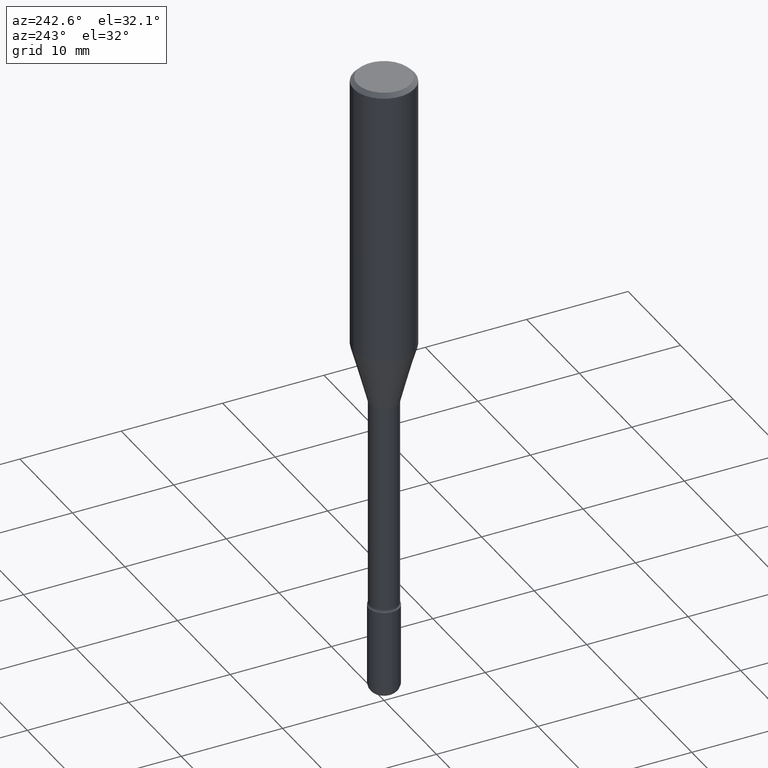
[diagram: clean part render]
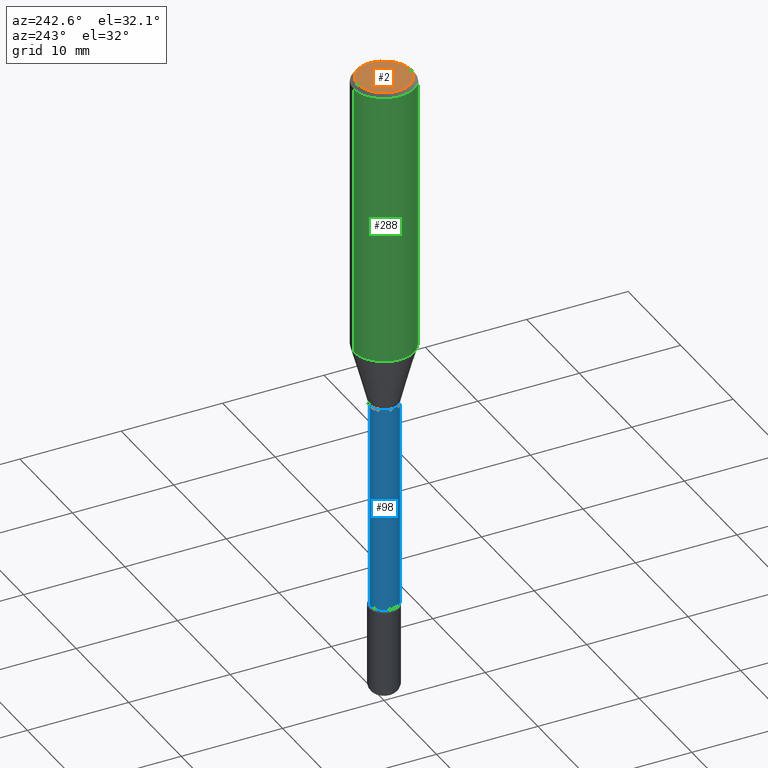
[diagram: same view with three faces highlighted in distinct colors, each labeled with its STEP entity id]
A machine part, auxiliary view with three faces highlighted in distinct colors.
Their STEP definitions:

[orange] entity #2 — the highlighted planar face has unit normal (0, -0, -1).
#2 = ADVANCED_FACE ( 'NONE', ( #182 ), #361, .F. ) ;
#48 = DIRECTION ( 'NONE',  ( 6.982962677686265922E-15, 1.000000000000000000, -3.491702207079214016E-15 ) ) ;
#52 = EDGE_LOOP ( 'NONE', ( #383, #298 ) ) ;
#131 = CARTESIAN_POINT ( 'NONE',  ( -7.587710785535310407E-16, -0.1031000000000000111, 3.312380692850428747E-16 ) ) ;
#138 = AXIS2_PLACEMENT_3D ( 'NONE', #267, #307, #48 ) ;
#144 = EDGE_CURVE ( 'NONE', #147, #455, #268, .T. ) ;
#147 = VERTEX_POINT ( 'NONE', #131 ) ;
#182 = FACE_OUTER_BOUND ( 'NONE', #52, .T. ) ;
#231 = CARTESIAN_POINT ( 'NONE',  ( 7.024477919222300476E-46, -1.005144752683258765E-31, -2.875642826482414108E-17 ) ) ;
#267 = CARTESIAN_POINT ( 'NONE',  ( 7.199434520694541042E-16, 0.1031000000000000111, -1.353360122366559931E-16 ) ) ;
#268 = CIRCLE ( 'NONE', #334, 0.1031000000000000111 ) ;
#272 = DIRECTION ( 'NONE',  ( -2.445314574720221452E-29, 3.491702207079214016E-15, 1.000000000000000000 ) ) ;
#298 = ORIENTED_EDGE ( 'NONE', *, *, #144, .T. ) ;
#307 = DIRECTION ( 'NONE',  ( 2.445314574720221172E-29, -3.491702207079214016E-15, -1.000000000000000000 ) ) ;
#308 = DIRECTION ( 'NONE',  ( -6.982962677686265922E-15, -1.000000000000000000, 3.491702207079214016E-15 ) ) ;
#334 = AXIS2_PLACEMENT_3D ( 'NONE', #231, #272, #409 ) ;
#361 = PLANE ( 'NONE',  #138 ) ;
#383 = ORIENTED_EDGE ( 'NONE', *, *, #517, .T. ) ;
#384 = CARTESIAN_POINT ( 'NONE',  ( 7.723156721521011834E-16, 0.1031000000000000111, -3.887509258146911569E-16 ) ) ;
#387 = AXIS2_PLACEMENT_3D ( 'NONE', #399, #483, #308 ) ;
#399 = CARTESIAN_POINT ( 'NONE',  ( 7.024477919222300476E-46, -1.005144752683258765E-31, -2.875642826482414108E-17 ) ) ;
#409 = DIRECTION ( 'NONE',  ( -6.982962677686265922E-15, -1.000000000000000000, 3.491702207079214016E-15 ) ) ;
#455 = VERTEX_POINT ( 'NONE', #384 ) ;
#483 = DIRECTION ( 'NONE',  ( -2.445314574720221452E-29, 3.491702207079214016E-15, 1.000000000000000000 ) ) ;
#517 = EDGE_CURVE ( 'NONE', #455, #147, #563, .T. ) ;
#563 = CIRCLE ( 'NONE', #387, 0.1031000000000000111 ) ;

[blue] entity #98 — the highlighted cylindrical surface (edge-blend (fillet) strip) has radius 1.4097 mm, axis along (-0, 0, 1).
#6 = AXIS2_PLACEMENT_3D ( 'NONE', #480, #436, #559 ) ;
#40 = CARTESIAN_POINT ( 'NONE',  ( -1.169113584055446105E-44, 1.669184350826100908E-30, 4.780733988912460139E-16 ) ) ;
#43 = EDGE_CURVE ( 'NONE', #471, #164, #446, .T. ) ;
#46 = EDGE_CURVE ( 'NONE', #190, #531, #488, .T. ) ;
#53 = VECTOR ( 'NONE', #481, 39.37007874015748143 ) ;
#74 = AXIS2_PLACEMENT_3D ( 'NONE', #303, #165, #512 ) ;
#77 = CARTESIAN_POINT ( 'NONE',  ( 4.069633519066500838E-16, 0.05549999999999261774, -2.136009927760847749 ) ) ;
#98 = ADVANCED_FACE ( 'NONE', ( #439 ), #572, .T. ) ;
#105 = CARTESIAN_POINT ( 'NONE',  ( -3.875544286115360749E-16, -0.05550000000000754330, -2.136009927760847305 ) ) ;
#117 = ORIENTED_EDGE ( 'NONE', *, *, #458, .T. ) ;
#119 = ORIENTED_EDGE ( 'NONE', *, *, #43, .F. ) ;
#128 = VECTOR ( 'NONE', #398, 39.37007874015748143 ) ;
#164 = VERTEX_POINT ( 'NONE', #285 ) ;
#165 = DIRECTION ( 'NONE',  ( -2.445314574720221452E-29, 3.491702207079214016E-15, 1.000000000000000000 ) ) ;
#190 = VERTEX_POINT ( 'NONE', #105 ) ;
#220 = DIRECTION ( 'NONE',  ( -6.982962677686265922E-15, -1.000000000000000000, 3.491702207079214016E-15 ) ) ;
#224 = DIRECTION ( 'NONE',  ( -2.445314574720221452E-29, 3.491702207079214016E-15, 1.000000000000000000 ) ) ;
#253 = ORIENTED_EDGE ( 'NONE', *, *, #46, .T. ) ;
#274 = EDGE_LOOP ( 'NONE', ( #119, #117, #253, #428 ) ) ;
#285 = CARTESIAN_POINT ( 'NONE',  ( 3.943512183469081661E-16, 0.05549999999999540023, -1.320874787463811373 ) ) ;
#289 = CIRCLE ( 'NONE', #6, 0.05550000000000008399 ) ;
#303 = CARTESIAN_POINT ( 'NONE',  ( 3.229954369165731744E-29, -4.612101410662676179E-15, -1.320874787463810929 ) ) ;
#318 = CARTESIAN_POINT ( 'NONE',  ( 3.943512183468558548E-16, 0.05550000000000004929, 2.842839263983495232E-16 ) ) ;
#320 = CARTESIAN_POINT ( 'NONE',  ( -3.875544286115880904E-16, -0.05550000000000004929, 6.718628713841425539E-16 ) ) ;
#324 = CIRCLE ( 'NONE', #74, 0.05550000000000001460 ) ;
#381 = EDGE_CURVE ( 'NONE', #164, #531, #324, .T. ) ;
#398 = DIRECTION ( 'NONE',  ( -2.445314574720221172E-29, 3.491702207079214016E-15, 1.000000000000000000 ) ) ;
#428 = ORIENTED_EDGE ( 'NONE', *, *, #381, .F. ) ;
#436 = DIRECTION ( 'NONE',  ( -2.445314574720221452E-29, 3.491702207079214016E-15, 1.000000000000000000 ) ) ;
#439 = FACE_OUTER_BOUND ( 'NONE', #274, .T. ) ;
#445 = CARTESIAN_POINT ( 'NONE',  ( -3.875544286115555499E-16, -0.05550000000000462202, -1.320874787463810707 ) ) ;
#446 = LINE ( 'NONE', #318, #53 ) ;
#458 = EDGE_CURVE ( 'NONE', #471, #190, #289, .T. ) ;
#471 = VERTEX_POINT ( 'NONE', #77 ) ;
#480 = CARTESIAN_POINT ( 'NONE',  ( 5.223216208100687058E-29, -7.458310579105662270E-15, -2.136009927760847305 ) ) ;
#481 = DIRECTION ( 'NONE',  ( -2.445314574720221172E-29, 3.491702207079214016E-15, 1.000000000000000000 ) ) ;
#488 = LINE ( 'NONE', #320, #128 ) ;
#512 = DIRECTION ( 'NONE',  ( -6.982962677686265922E-15, -1.000000000000000000, 4.922248637232905613E-15 ) ) ;
#531 = VERTEX_POINT ( 'NONE', #445 ) ;
#559 = DIRECTION ( 'NONE',  ( -6.982962677686265922E-15, -1.000000000000000000, 4.922248637232899302E-15 ) ) ;
#562 = AXIS2_PLACEMENT_3D ( 'NONE', #40, #224, #220 ) ;
#572 = CYLINDRICAL_SURFACE ( 'NONE', #562, 0.05550000000000004929 ) ;

[green] entity #288 — the highlighted cylindrical surface (edge-blend (fillet) strip) has radius 2.9997 mm, axis along (-0, 0, 1).
#3 = ORIENTED_EDGE ( 'NONE', *, *, #255, .F. ) ;
#23 = DIRECTION ( 'NONE',  ( -6.982962677686265922E-15, -1.000000000000000000, 3.487819265831411744E-15 ) ) ;
#24 = VERTEX_POINT ( 'NONE', #45 ) ;
#45 = CARTESIAN_POINT ( 'NONE',  ( -8.246878922347212441E-16, -0.1181000000000037714, -1.085273619446188276 ) ) ;
#73 = DIRECTION ( 'NONE',  ( -2.445314574720221452E-29, 3.491702207079214016E-15, 1.000000000000000000 ) ) ;
#89 = CARTESIAN_POINT ( 'NONE',  ( 8.391509709326781971E-16, 0.1180999999999999966, 6.570336823519088696E-17 ) ) ;
#94 = DIRECTION ( 'NONE',  ( -2.445314574720221172E-29, 3.491702207079214016E-15, 1.000000000000000000 ) ) ;
#102 = CARTESIAN_POINT ( 'NONE',  ( -1.169113584055446105E-44, 1.669184350826100908E-30, 4.780733988912460139E-16 ) ) ;
#118 = LINE ( 'NONE', #217, #442 ) ;
#129 = AXIS2_PLACEMENT_3D ( 'NONE', #102, #368, #500 ) ;
#134 = EDGE_CURVE ( 'NONE', #511, #380, #486, .T. ) ;
#152 = CYLINDRICAL_SURFACE ( 'NONE', #129, 0.1180999999999999966 ) ;
#176 = CARTESIAN_POINT ( 'NONE',  ( 2.653835399191132044E-29, -3.789452292305104081E-15, -1.085273619446188720 ) ) ;
#188 = CARTESIAN_POINT ( 'NONE',  ( 8.391509709327049197E-16, 0.1180999999999962358, -1.085273619446189164 ) ) ;
#201 = FACE_OUTER_BOUND ( 'NONE', #548, .T. ) ;
#217 = CARTESIAN_POINT ( 'NONE',  ( -8.246878922347479668E-16, -0.1180999999999999966, 8.904434295473012272E-16 ) ) ;
#232 = ORIENTED_EDGE ( 'NONE', *, *, #497, .T. ) ;
#255 = EDGE_CURVE ( 'NONE', #380, #425, #259, .T. ) ;
#258 = DIRECTION ( 'NONE',  ( -2.445314574720221172E-29, 3.491702207079214016E-15, 1.000000000000000000 ) ) ;
#259 = CIRCLE ( 'NONE', #344, 0.1180999999999999966 ) ;
#288 = ADVANCED_FACE ( 'NONE', ( #201 ), #152, .T. ) ;
#306 = VECTOR ( 'NONE', #94, 39.37007874015748143 ) ;
#336 = CARTESIAN_POINT ( 'NONE',  ( 3.667971862080338817E-31, -5.237553310618831452E-17, -0.01500000000000002720 ) ) ;
#341 = CARTESIAN_POINT ( 'NONE',  ( 8.391509709327049197E-16, 0.1180999999999999411, -0.01500000000000044006 ) ) ;
#344 = AXIS2_PLACEMENT_3D ( 'NONE', #336, #461, #23 ) ;
#368 = DIRECTION ( 'NONE',  ( -2.445314574720221452E-29, 3.491702207079214016E-15, 1.000000000000000000 ) ) ;
#380 = VERTEX_POINT ( 'NONE', #341 ) ;
#382 = CARTESIAN_POINT ( 'NONE',  ( -8.246878922347475723E-16, -0.1181000000000000522, -0.01499999999999961607 ) ) ;
#406 = CIRCLE ( 'NONE', #504, 0.1180999999999999966 ) ;
#425 = VERTEX_POINT ( 'NONE', #382 ) ;
#440 = EDGE_CURVE ( 'NONE', #24, #425, #118, .T. ) ;
#442 = VECTOR ( 'NONE', #258, 39.37007874015748143 ) ;
#447 = ORIENTED_EDGE ( 'NONE', *, *, #134, .F. ) ;
#461 = DIRECTION ( 'NONE',  ( -2.445314574720221452E-29, 3.491702207079214016E-15, 1.000000000000000000 ) ) ;
#486 = LINE ( 'NONE', #89, #306 ) ;
#487 = DIRECTION ( 'NONE',  ( -6.982962677686265922E-15, -1.000000000000000000, 3.469747663417777397E-15 ) ) ;
#497 = EDGE_CURVE ( 'NONE', #511, #24, #406, .T. ) ;
#500 = DIRECTION ( 'NONE',  ( -6.982962677686265922E-15, -1.000000000000000000, 3.491702207079213622E-15 ) ) ;
#504 = AXIS2_PLACEMENT_3D ( 'NONE', #176, #73, #487 ) ;
#509 = ORIENTED_EDGE ( 'NONE', *, *, #440, .T. ) ;
#511 = VERTEX_POINT ( 'NONE', #188 ) ;
#548 = EDGE_LOOP ( 'NONE', ( #447, #232, #509, #3 ) ) ;